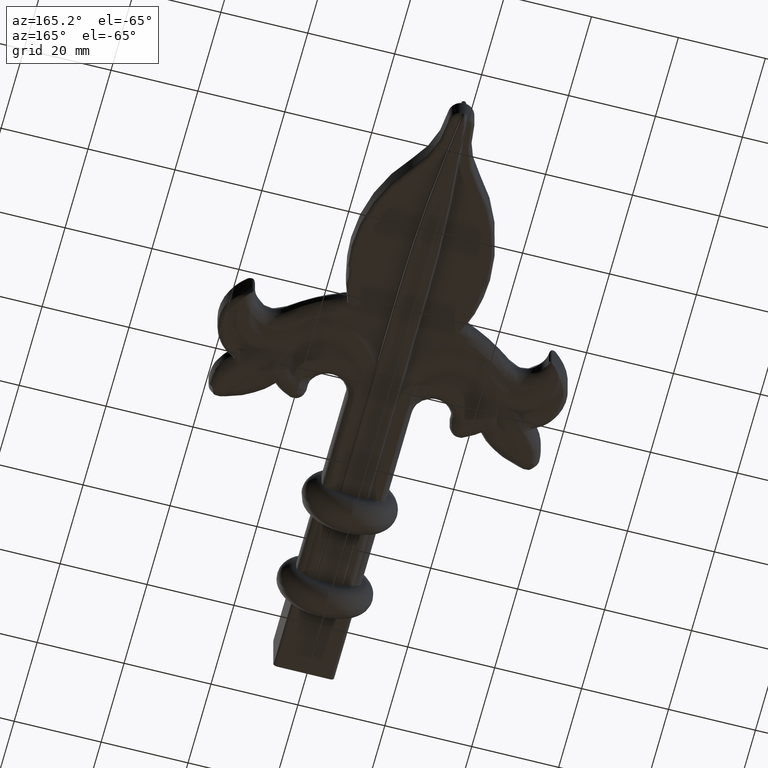
[diagram: clean part render]
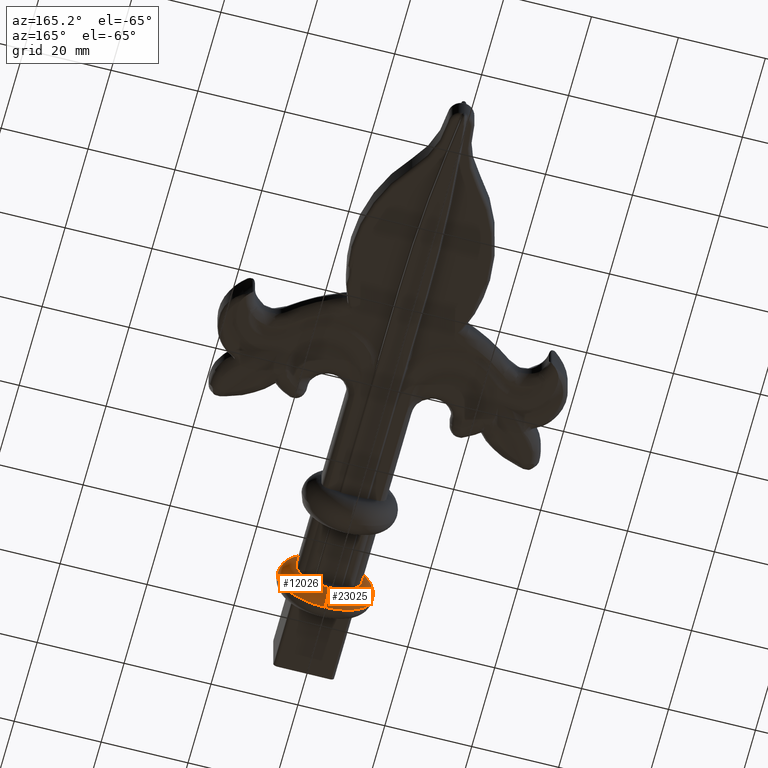
[diagram: same view with one multi-face feature highlighted, each face labeled with its STEP entity id]
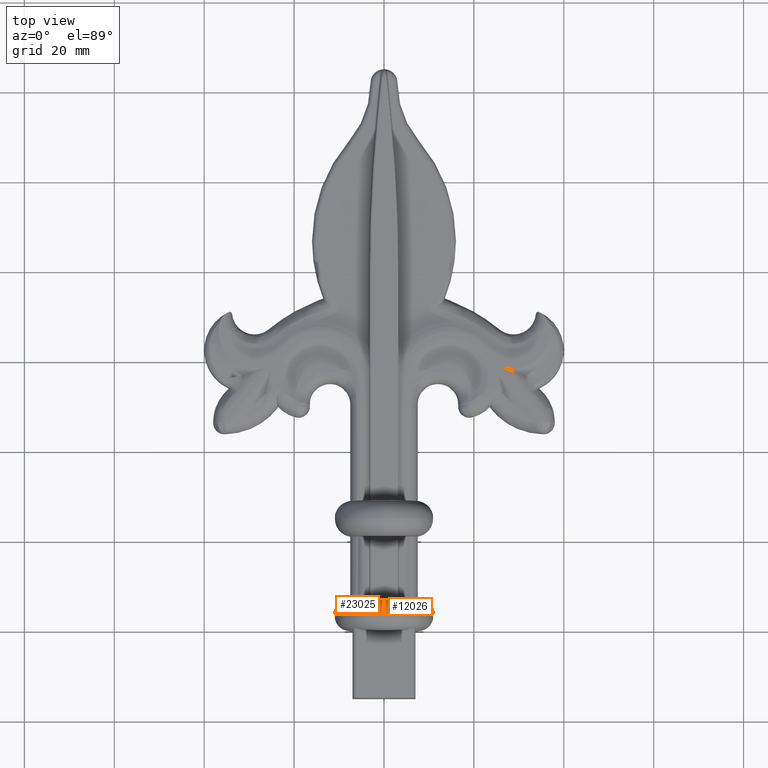
[diagram: same view with one multi-face feature highlighted, each face labeled with its STEP entity id]
A machine part, auxiliary view. The highlighted faces form ONE feature: a constant-radius fillet chain: 2 tangent blend faces with common blend radius 3.4 mm. The faces share edges in the B-rep.
A second angle (top view) of the same feature is appended — it is thin or edge-on in the first view.
Their STEP definitions:
[1] entity #12026 (Torus):
#1713 = DIRECTION ( 'NONE',  ( 0.000000000000000000, 0.000000000000000000, -1.000000000000000000 ) ) ;
#1781 = ORIENTED_EDGE ( 'NONE', *, *, #20273, .T. ) ;
#2125 = DIRECTION ( 'NONE',  ( -0.000000000000000000, -1.000000000000000000, -0.000000000000000000 ) ) ;
#2132 = CIRCLE ( 'NONE', #25697, 11.00000000000000000 ) ;
#2798 = EDGE_CURVE ( 'NONE', #7831, #6421, #3521, .T. ) ;
#3128 = TOROIDAL_SURFACE ( 'NONE', #23688, 7.599999999999998757, 3.399999999999999911 ) ;
#3436 = CARTESIAN_POINT ( 'NONE',  ( 0.000000000000000000, 3.599999999999999201, 0.000000000000000000 ) ) ;
#3521 = B_SPLINE_CURVE_WITH_KNOTS ( 'NONE', 3,
 ( #27007, #4800, #17713, #24650 ),
 .UNSPECIFIED., .F., .F.,
 ( 4, 4 ),
 ( 2.168404344971008868E-19, 0.0008211640950530645815 ),
 .UNSPECIFIED. ) ;
#4430 = CARTESIAN_POINT ( 'NONE',  ( 0.000000000000000000, 7.000000000000000000, 0.000000000000000000 ) ) ;
#4800 = CARTESIAN_POINT ( 'NONE',  ( 7.481189478299730133, 7.000000000000000000, 1.528309402240214387 ) ) ;
#6124 = VERTEX_POINT ( 'NONE', #16740 ) ;
#6421 = VERTEX_POINT ( 'NONE', #23267 ) ;
#6624 = CARTESIAN_POINT ( 'NONE',  ( 1.138921523207038377E-15, 7.000000000000000000, -7.599999999999998757 ) ) ;
#7187 = CIRCLE ( 'NONE', #26322, 3.400000000000000355 ) ;
#7256 = DIRECTION ( 'NONE',  ( -1.000000000000000000, 0.000000000000000000, 0.000000000000000000 ) ) ;
#7804 = EDGE_LOOP ( 'NONE', ( #10225, #28058, #1781, #24093, #27296, #15398, #9088, #11014 ) ) ;
#7831 = VERTEX_POINT ( 'NONE', #21074 ) ;
#8176 = EDGE_CURVE ( 'NONE', #15475, #22257, #2132, .T. ) ;
#8452 = CARTESIAN_POINT ( 'NONE',  ( 0.000000000000000000, 7.000000000000000000, 0.000000000000000000 ) ) ;
#8958 = DIRECTION ( 'NONE',  ( 0.000000000000000000, 1.000000000000000000, 0.000000000000000000 ) ) ;
#8971 = FACE_OUTER_BOUND ( 'NONE', #7804, .T. ) ;
#9088 = ORIENTED_EDGE ( 'NONE', *, *, #12486, .F. ) ;
#9212 = VERTEX_POINT ( 'NONE', #6624 ) ;
#9616 = CARTESIAN_POINT ( 'NONE',  ( 1.347111479062088405E-15, 3.599999999999999201, 11.00000000000000000 ) ) ;
#10225 = ORIENTED_EDGE ( 'NONE', *, *, #8176, .F. ) ;
#10668 = DIRECTION ( 'NONE',  ( 1.000000000000000000, -0.000000000000000000, 1.224646799147353207E-16 ) ) ;
#10813 = AXIS2_PLACEMENT_3D ( 'NONE', #23621, #27532, #26061 ) ;
#11014 = ORIENTED_EDGE ( 'NONE', *, *, #23735, .F. ) ;
#11181 = CIRCLE ( 'NONE', #15241, 3.400000000000000355 ) ;
#12026 = ADVANCED_FACE ( 'NONE', ( #8971 ), #3128, .T. ) ;
#12486 = EDGE_CURVE ( 'NONE', #14055, #6421, #13305, .T. ) ;
#12819 = CARTESIAN_POINT ( 'NONE',  ( 9.307315673519883487E-16, 3.599999999999999201, -7.599999999999998757 ) ) ;
#13046 = DIRECTION ( 'NONE',  ( -0.000000000000000000, -1.000000000000000000, -0.000000000000000000 ) ) ;
#13305 = CIRCLE ( 'NONE', #20116, 7.599999999999998757 ) ;
#14055 = VERTEX_POINT ( 'NONE', #20279 ) ;
#14057 = DIRECTION ( 'NONE',  ( 0.000000000000000000, 0.000000000000000000, 1.000000000000000000 ) ) ;
#15195 = CARTESIAN_POINT ( 'NONE',  ( 7.481189478299730133, 7.000000000000000000, -1.528309402240214387 ) ) ;
#15241 = AXIS2_PLACEMENT_3D ( 'NONE', #22924, #7256, #14057 ) ;
#15398 = ORIENTED_EDGE ( 'NONE', *, *, #2798, .T. ) ;
#15475 = VERTEX_POINT ( 'NONE', #21083 ) ;
#15691 = DIRECTION ( 'NONE',  ( 0.000000000000000000, 0.000000000000000000, 1.000000000000000000 ) ) ;
#16179 = CARTESIAN_POINT ( 'NONE',  ( 7.496293723209505266, 7.000000000000000000, -1.251231559452427256 ) ) ;
#16740 = CARTESIAN_POINT ( 'NONE',  ( 7.317541022839071374, 7.000000000000000000, -2.052703918997405896 ) ) ;
#16923 = DIRECTION ( 'NONE',  ( 0.000000000000000000, 0.000000000000000000, 1.000000000000000000 ) ) ;
#17017 = DIRECTION ( 'NONE',  ( 0.000000000000000000, 1.000000000000000000, 0.000000000000000000 ) ) ;
#17713 = CARTESIAN_POINT ( 'NONE',  ( 7.421605244842908178, 6.999999999999999112, 1.795466855421872454 ) ) ;
#18969 = CIRCLE ( 'NONE', #26585, 7.599999999999998757 ) ;
#19693 = CARTESIAN_POINT ( 'NONE',  ( 0.000000000000000000, 3.599999999999999201, 0.000000000000000000 ) ) ;
#20116 = AXIS2_PLACEMENT_3D ( 'NONE', #4430, #8958, #15691 ) ;
#20273 = EDGE_CURVE ( 'NONE', #9212, #6124, #18969, .T. ) ;
#20279 = CARTESIAN_POINT ( 'NONE',  ( 0.000000000000000000, 7.000000000000000000, 7.599999999999998757 ) ) ;
#21074 = CARTESIAN_POINT ( 'NONE',  ( 7.496293723209505266, 7.000000000000000000, 1.251231559452427256 ) ) ;
#21083 = CARTESIAN_POINT ( 'NONE',  ( 0.000000000000000000, 3.599999999999999201, -11.00000000000000000 ) ) ;
#21493 = EDGE_CURVE ( 'NONE', #24198, #6124, #22019, .T. ) ;
#21881 = CARTESIAN_POINT ( 'NONE',  ( 7.496293723209505266, 7.000000000000000000, -1.251231559452427256 ) ) ;
#22019 = B_SPLINE_CURVE_WITH_KNOTS ( 'NONE', 3,
 ( #21881, #15195, #24134, #28635 ),
 .UNSPECIFIED., .F., .F.,
 ( 4, 4 ),
 ( 2.168404344971008868E-19, 0.0008211640950530645815 ),
 .UNSPECIFIED. ) ;
#22031 = DIRECTION ( 'NONE',  ( 0.000000000000000000, 0.000000000000000000, 1.000000000000000000 ) ) ;
#22257 = VERTEX_POINT ( 'NONE', #9616 ) ;
#22924 = CARTESIAN_POINT ( 'NONE',  ( 0.000000000000000000, 3.599999999999999201, 7.599999999999998757 ) ) ;
#23267 = CARTESIAN_POINT ( 'NONE',  ( 7.317541022839071374, 7.000000000000000000, 2.052703918997405896 ) ) ;
#23621 = CARTESIAN_POINT ( 'NONE',  ( 0.000000000000000000, 7.000000000000000000, 0.000000000000000000 ) ) ;
#23688 = AXIS2_PLACEMENT_3D ( 'NONE', #3436, #17017, #16923 ) ;
#23735 = EDGE_CURVE ( 'NONE', #22257, #14055, #11181, .T. ) ;
#24093 = ORIENTED_EDGE ( 'NONE', *, *, #21493, .F. ) ;
#24134 = CARTESIAN_POINT ( 'NONE',  ( 7.421605244842908178, 6.999999999999999112, -1.795466855421872454 ) ) ;
#24198 = VERTEX_POINT ( 'NONE', #16179 ) ;
#24599 = CIRCLE ( 'NONE', #10813, 7.599999999999998757 ) ;
#24650 = CARTESIAN_POINT ( 'NONE',  ( 7.317541022839071374, 7.000000000000000000, 2.052703918997405896 ) ) ;
#25089 = EDGE_CURVE ( 'NONE', #7831, #24198, #24599, .T. ) ;
#25138 = EDGE_CURVE ( 'NONE', #15475, #9212, #7187, .T. ) ;
#25697 = AXIS2_PLACEMENT_3D ( 'NONE', #19693, #2125, #22031 ) ;
#26061 = DIRECTION ( 'NONE',  ( 0.000000000000000000, 0.000000000000000000, 1.000000000000000000 ) ) ;
#26322 = AXIS2_PLACEMENT_3D ( 'NONE', #12819, #10668, #28518 ) ;
#26585 = AXIS2_PLACEMENT_3D ( 'NONE', #8452, #13046, #1713 ) ;
#27007 = CARTESIAN_POINT ( 'NONE',  ( 7.496293723209505266, 7.000000000000000000, 1.251231559452427256 ) ) ;
#27296 = ORIENTED_EDGE ( 'NONE', *, *, #25089, .F. ) ;
#27532 = DIRECTION ( 'NONE',  ( 0.000000000000000000, 1.000000000000000000, 0.000000000000000000 ) ) ;
#28058 = ORIENTED_EDGE ( 'NONE', *, *, #25138, .T. ) ;
#28518 = DIRECTION ( 'NONE',  ( 1.224646799147352714E-16, 0.000000000000000000, -1.000000000000000000 ) ) ;
#28635 = CARTESIAN_POINT ( 'NONE',  ( 7.317541022839071374, 7.000000000000000000, -2.052703918997405896 ) ) ;
[2] entity #23025 (Torus):
#1020 = CARTESIAN_POINT ( 'NONE',  ( -7.481189478299730133, 7.000000000000000000, 1.528309402240214387 ) ) ;
#1042 = ORIENTED_EDGE ( 'NONE', *, *, #21242, .F. ) ;
#1164 = CIRCLE ( 'NONE', #15653, 11.00000000000000000 ) ;
#1168 = CARTESIAN_POINT ( 'NONE',  ( 0.000000000000000000, 3.599999999999999201, 0.000000000000000000 ) ) ;
#2015 = CARTESIAN_POINT ( 'NONE',  ( -7.317541022839071374, 7.000000000000000000, 2.052703918997405896 ) ) ;
#2544 = ORIENTED_EDGE ( 'NONE', *, *, #12151, .F. ) ;
#2919 = CIRCLE ( 'NONE', #12735, 7.599999999999998757 ) ;
#3203 = CARTESIAN_POINT ( 'NONE',  ( 0.000000000000000000, 3.599999999999999201, 0.000000000000000000 ) ) ;
#3604 = CARTESIAN_POINT ( 'NONE',  ( -7.317541022839071374, 7.000000000000000000, -2.052703918997405896 ) ) ;
#4001 = CARTESIAN_POINT ( 'NONE',  ( 0.000000000000000000, 7.000000000000000000, 0.000000000000000000 ) ) ;
#4148 = CARTESIAN_POINT ( 'NONE',  ( 0.000000000000000000, 7.000000000000000000, 0.000000000000000000 ) ) ;
#4861 = CARTESIAN_POINT ( 'NONE',  ( 0.000000000000000000, 7.000000000000000000, 0.000000000000000000 ) ) ;
#5236 = DIRECTION ( 'NONE',  ( 0.000000000000000000, 0.000000000000000000, 1.000000000000000000 ) ) ;
#5639 = B_SPLINE_CURVE_WITH_KNOTS ( 'NONE', 3,
 ( #25037, #25341, #23185, #9843 ),
 .UNSPECIFIED., .F., .F.,
 ( 4, 4 ),
 ( 2.168404344971008868E-19, 0.0008211640950530645815 ),
 .UNSPECIFIED. ) ;
#6624 = CARTESIAN_POINT ( 'NONE',  ( 1.138921523207038377E-15, 7.000000000000000000, -7.599999999999998757 ) ) ;
#6777 = EDGE_CURVE ( 'NONE', #17157, #9212, #9449, .T. ) ;
#7187 = CIRCLE ( 'NONE', #26322, 3.400000000000000355 ) ;
#7256 = DIRECTION ( 'NONE',  ( -1.000000000000000000, 0.000000000000000000, 0.000000000000000000 ) ) ;
#7372 = ORIENTED_EDGE ( 'NONE', *, *, #15094, .T. ) ;
#8399 = ORIENTED_EDGE ( 'NONE', *, *, #6777, .T. ) ;
#8764 = CIRCLE ( 'NONE', #16418, 7.599999999999998757 ) ;
#8766 = ORIENTED_EDGE ( 'NONE', *, *, #13937, .F. ) ;
#8797 = DIRECTION ( 'NONE',  ( 0.000000000000000000, 0.000000000000000000, 1.000000000000000000 ) ) ;
#8868 = VERTEX_POINT ( 'NONE', #13608 ) ;
#9212 = VERTEX_POINT ( 'NONE', #6624 ) ;
#9449 = CIRCLE ( 'NONE', #17602, 7.599999999999998757 ) ;
#9616 = CARTESIAN_POINT ( 'NONE',  ( 1.347111479062088405E-15, 3.599999999999999201, 11.00000000000000000 ) ) ;
#9843 = CARTESIAN_POINT ( 'NONE',  ( -7.317541022839071374, 7.000000000000000000, -2.052703918997405896 ) ) ;
#10536 = ORIENTED_EDGE ( 'NONE', *, *, #23735, .T. ) ;
#10668 = DIRECTION ( 'NONE',  ( 1.000000000000000000, -0.000000000000000000, 1.224646799147353207E-16 ) ) ;
#11181 = CIRCLE ( 'NONE', #15241, 3.400000000000000355 ) ;
#11834 = DIRECTION ( 'NONE',  ( -0.000000000000000000, -1.000000000000000000, -0.000000000000000000 ) ) ;
#12151 = EDGE_CURVE ( 'NONE', #22257, #15475, #1164, .T. ) ;
#12735 = AXIS2_PLACEMENT_3D ( 'NONE', #4861, #20202, #20402 ) ;
#12819 = CARTESIAN_POINT ( 'NONE',  ( 9.307315673519883487E-16, 3.599999999999999201, -7.599999999999998757 ) ) ;
#13608 = CARTESIAN_POINT ( 'NONE',  ( -7.496293723209505266, 7.000000000000000000, -1.251231559452427256 ) ) ;
#13672 = EDGE_LOOP ( 'NONE', ( #14733, #2544, #10536, #8766, #1042, #7372, #27359, #8399 ) ) ;
#13937 = EDGE_CURVE ( 'NONE', #19978, #14055, #8764, .T. ) ;
#14055 = VERTEX_POINT ( 'NONE', #20279 ) ;
#14057 = DIRECTION ( 'NONE',  ( 0.000000000000000000, 0.000000000000000000, 1.000000000000000000 ) ) ;
#14383 = TOROIDAL_SURFACE ( 'NONE', #27193, 7.599999999999998757, 3.399999999999999911 ) ;
#14733 = ORIENTED_EDGE ( 'NONE', *, *, #25138, .F. ) ;
#15094 = EDGE_CURVE ( 'NONE', #22790, #8868, #2919, .T. ) ;
#15205 = DIRECTION ( 'NONE',  ( 0.000000000000000000, 0.000000000000000000, -1.000000000000000000 ) ) ;
#15241 = AXIS2_PLACEMENT_3D ( 'NONE', #22924, #7256, #14057 ) ;
#15475 = VERTEX_POINT ( 'NONE', #21083 ) ;
#15653 = AXIS2_PLACEMENT_3D ( 'NONE', #1168, #11834, #5236 ) ;
#16418 = AXIS2_PLACEMENT_3D ( 'NONE', #4148, #22138, #8797 ) ;
#17157 = VERTEX_POINT ( 'NONE', #3604 ) ;
#17602 = AXIS2_PLACEMENT_3D ( 'NONE', #4001, #28560, #15205 ) ;
#19590 = B_SPLINE_CURVE_WITH_KNOTS ( 'NONE', 3,
 ( #20735, #1020, #21133, #23369 ),
 .UNSPECIFIED., .F., .F.,
 ( 4, 4 ),
 ( 2.168404344971008868E-19, 0.0008211640950530645815 ),
 .UNSPECIFIED. ) ;
#19978 = VERTEX_POINT ( 'NONE', #2015 ) ;
#20118 = EDGE_CURVE ( 'NONE', #8868, #17157, #5639, .T. ) ;
#20202 = DIRECTION ( 'NONE',  ( -0.000000000000000000, -1.000000000000000000, -0.000000000000000000 ) ) ;
#20279 = CARTESIAN_POINT ( 'NONE',  ( 0.000000000000000000, 7.000000000000000000, 7.599999999999998757 ) ) ;
#20402 = DIRECTION ( 'NONE',  ( 0.000000000000000000, 0.000000000000000000, 1.000000000000000000 ) ) ;
#20735 = CARTESIAN_POINT ( 'NONE',  ( -7.496293723209505266, 7.000000000000000000, 1.251231559452427256 ) ) ;
#21083 = CARTESIAN_POINT ( 'NONE',  ( 0.000000000000000000, 3.599999999999999201, -11.00000000000000000 ) ) ;
#21133 = CARTESIAN_POINT ( 'NONE',  ( -7.421605244842908178, 6.999999999999999112, 1.795466855421872454 ) ) ;
#21242 = EDGE_CURVE ( 'NONE', #22790, #19978, #19590, .T. ) ;
#22138 = DIRECTION ( 'NONE',  ( 0.000000000000000000, 1.000000000000000000, 0.000000000000000000 ) ) ;
#22257 = VERTEX_POINT ( 'NONE', #9616 ) ;
#22790 = VERTEX_POINT ( 'NONE', #23834 ) ;
#22924 = CARTESIAN_POINT ( 'NONE',  ( 0.000000000000000000, 3.599999999999999201, 7.599999999999998757 ) ) ;
#23025 = ADVANCED_FACE ( 'NONE', ( #26933 ), #14383, .T. ) ;
#23185 = CARTESIAN_POINT ( 'NONE',  ( -7.421605244842908178, 6.999999999999999112, -1.795466855421872454 ) ) ;
#23316 = DIRECTION ( 'NONE',  ( 0.000000000000000000, 1.000000000000000000, 0.000000000000000000 ) ) ;
#23369 = CARTESIAN_POINT ( 'NONE',  ( -7.317541022839071374, 7.000000000000000000, 2.052703918997405896 ) ) ;
#23403 = DIRECTION ( 'NONE',  ( 0.000000000000000000, 0.000000000000000000, 1.000000000000000000 ) ) ;
#23735 = EDGE_CURVE ( 'NONE', #22257, #14055, #11181, .T. ) ;
#23834 = CARTESIAN_POINT ( 'NONE',  ( -7.496293723209505266, 7.000000000000000000, 1.251231559452427256 ) ) ;
#25037 = CARTESIAN_POINT ( 'NONE',  ( -7.496293723209505266, 7.000000000000000000, -1.251231559452427256 ) ) ;
#25138 = EDGE_CURVE ( 'NONE', #15475, #9212, #7187, .T. ) ;
#25341 = CARTESIAN_POINT ( 'NONE',  ( -7.481189478299730133, 7.000000000000000000, -1.528309402240214387 ) ) ;
#26322 = AXIS2_PLACEMENT_3D ( 'NONE', #12819, #10668, #28518 ) ;
#26933 = FACE_OUTER_BOUND ( 'NONE', #13672, .T. ) ;
#27193 = AXIS2_PLACEMENT_3D ( 'NONE', #3203, #23316, #23403 ) ;
#27359 = ORIENTED_EDGE ( 'NONE', *, *, #20118, .T. ) ;
#28518 = DIRECTION ( 'NONE',  ( 1.224646799147352714E-16, 0.000000000000000000, -1.000000000000000000 ) ) ;
#28560 = DIRECTION ( 'NONE',  ( -0.000000000000000000, -1.000000000000000000, -0.000000000000000000 ) ) ;